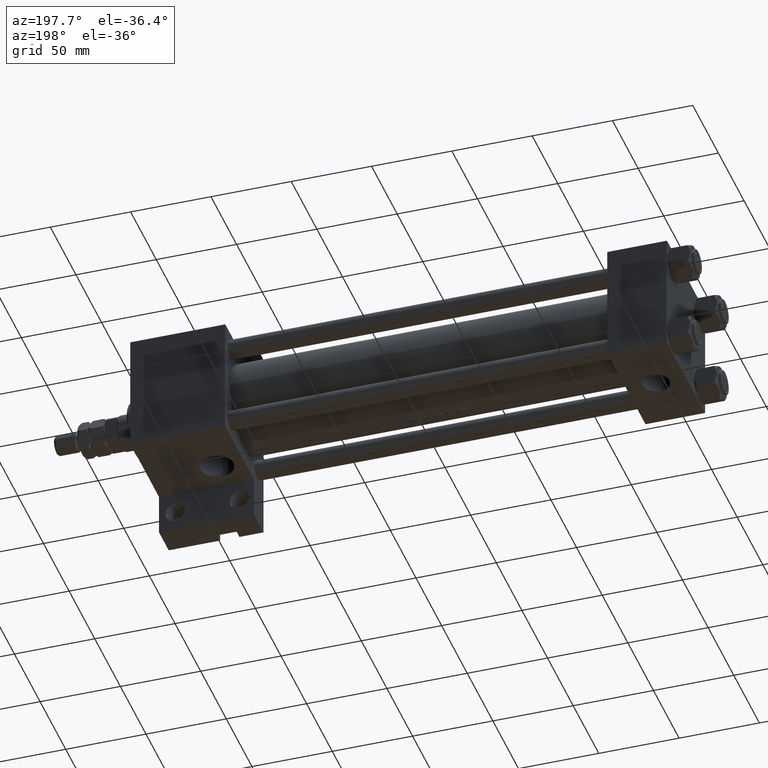
[diagram: clean part render]
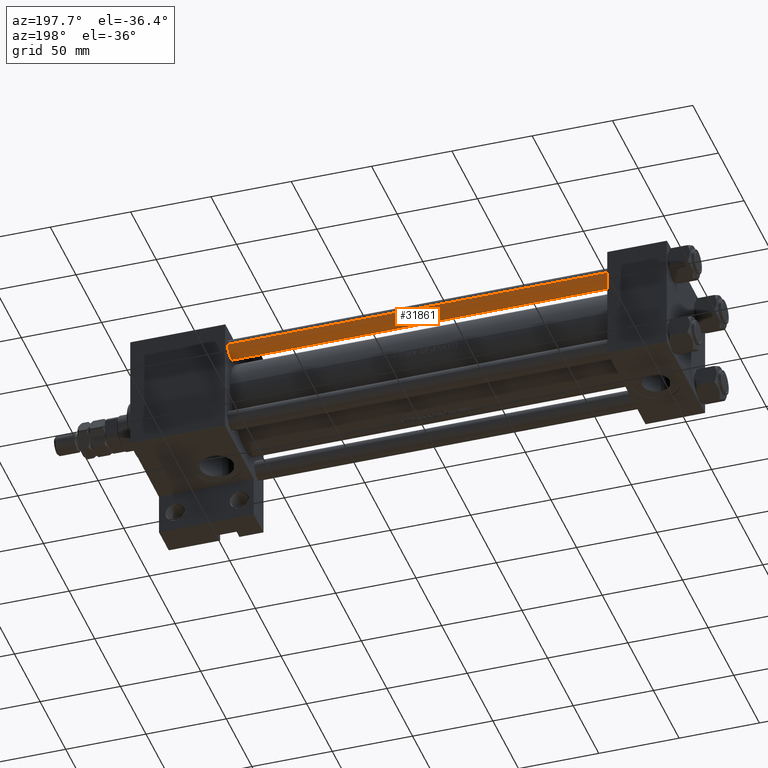
[diagram: same view with one face highlighted and labeled with its STEP entity id]
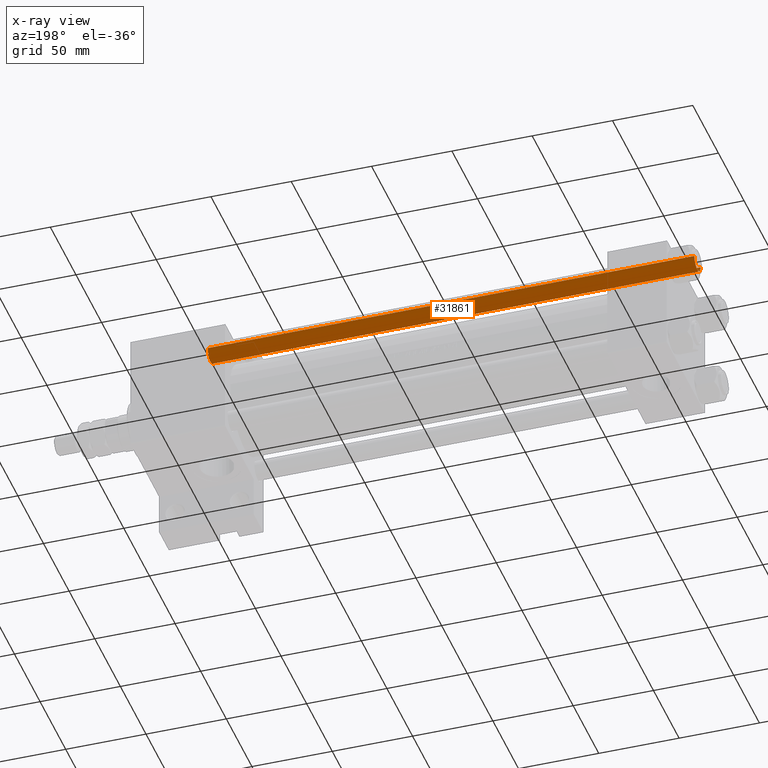
[diagram: x-ray of the same camera — body ghosted, the highlighted face saturated]
A machine part, auxiliary view. The second image highlights one B-rep face of the part: STEP entity #31861.
The next image is the same camera in x-ray: the body ghosted, the highlighted face saturated — about 0% of this face is hidden behind the body in this view.
In plain terms, the highlighted cylindrical surface (edge-blend (fillet) strip) has radius 6 mm, axis along (1, -0, 0).
Its self-contained STEP definition (entity closure, byte-faithful):
#1759 = CARTESIAN_POINT ( 'NONE',  ( 6.000000000000000888, 7.347880794884120722E-16, 0.4999999999999449329 ) ) ;
#1835 = VERTEX_POINT ( 'NONE', #23156 ) ;
#4898 = DIRECTION ( 'NONE',  ( 1.000000000000000000, 0.000000000000000000, 0.000000000000000000 ) ) ;
#5608 = CARTESIAN_POINT ( 'NONE',  ( -6.000000000000000888, 0.000000000000000000, 304.0000000000000000 ) ) ;
#8917 = CARTESIAN_POINT ( 'NONE',  ( 0.000000000000000000, 0.000000000000000000, 304.0000000000000000 ) ) ;
#12174 = CARTESIAN_POINT ( 'NONE',  ( 0.000000000000000000, 0.000000000000000000, 303.5000000000000000 ) ) ;
#13141 = DIRECTION ( 'NONE',  ( -1.000000000000000000, 0.000000000000000000, 0.000000000000000000 ) ) ;
#14355 = EDGE_CURVE ( 'NONE', #1835, #30058, #34041, .T. ) ;
#14529 = AXIS2_PLACEMENT_3D ( 'NONE', #23792, #38954, #4898 ) ;
#15609 = ORIENTED_EDGE ( 'NONE', *, *, #14355, .F. ) ;
#16097 = EDGE_CURVE ( 'NONE', #34842, #23646, #19296, .T. ) ;
#16414 = EDGE_LOOP ( 'NONE', ( #23116, #48964, #47480, #15609 ) ) ;
#16913 = CIRCLE ( 'NONE', #14529, 6.000000000000000888 ) ;
#19296 = LINE ( 'NONE', #37966, #28709 ) ;
#19553 = DIRECTION ( 'NONE',  ( -0.000000000000000000, -0.000000000000000000, -1.000000000000000000 ) ) ;
#23116 = ORIENTED_EDGE ( 'NONE', *, *, #26009, .T. ) ;
#23156 = CARTESIAN_POINT ( 'NONE',  ( -6.000000000000000888, 0.000000000000000000, 303.5000000000000000 ) ) ;
#23646 = VERTEX_POINT ( 'NONE', #1759 ) ;
#23792 = CARTESIAN_POINT ( 'NONE',  ( 0.000000000000000000, 0.000000000000000000, 0.4999999999999449329 ) ) ;
#26009 = EDGE_CURVE ( 'NONE', #1835, #34842, #34645, .T. ) ;
#27825 = CYLINDRICAL_SURFACE ( 'NONE', #33760, 6.000000000000000888 ) ;
#27980 = DIRECTION ( 'NONE',  ( -0.000000000000000000, -0.000000000000000000, -1.000000000000000000 ) ) ;
#28709 = VECTOR ( 'NONE', #19553, 1000.000000000000000 ) ;
#30058 = VERTEX_POINT ( 'NONE', #31485 ) ;
#31308 = DIRECTION ( 'NONE',  ( -0.000000000000000000, -0.000000000000000000, -1.000000000000000000 ) ) ;
#31331 = DIRECTION ( 'NONE',  ( 1.000000000000000000, 0.000000000000000000, 0.000000000000000000 ) ) ;
#31485 = CARTESIAN_POINT ( 'NONE',  ( -6.000000000000000888, 0.000000000000000000, 0.4999999999999449329 ) ) ;
#31861 = ADVANCED_FACE ( 'NONE', ( #36031 ), #27825, .T. ) ;
#33760 = AXIS2_PLACEMENT_3D ( 'NONE', #8917, #31308, #13141 ) ;
#34041 = LINE ( 'NONE', #5608, #34837 ) ;
#34107 = CARTESIAN_POINT ( 'NONE',  ( 6.000000000000000888, 7.347880794884120722E-16, 303.5000000000000000 ) ) ;
#34645 = CIRCLE ( 'NONE', #43493, 6.000000000000000888 ) ;
#34837 = VECTOR ( 'NONE', #27980, 1000.000000000000000 ) ;
#34842 = VERTEX_POINT ( 'NONE', #34107 ) ;
#36031 = FACE_OUTER_BOUND ( 'NONE', #16414, .T. ) ;
#37966 = CARTESIAN_POINT ( 'NONE',  ( 6.000000000000000888, 7.347880794884120722E-16, 304.0000000000000000 ) ) ;
#38954 = DIRECTION ( 'NONE',  ( -0.000000000000000000, -0.000000000000000000, 1.000000000000000000 ) ) ;
#41494 = EDGE_CURVE ( 'NONE', #23646, #30058, #16913, .T. ) ;
#43493 = AXIS2_PLACEMENT_3D ( 'NONE', #12174, #45789, #31331 ) ;
#45789 = DIRECTION ( 'NONE',  ( 0.000000000000000000, 0.000000000000000000, -1.000000000000000000 ) ) ;
#47480 = ORIENTED_EDGE ( 'NONE', *, *, #41494, .T. ) ;
#48964 = ORIENTED_EDGE ( 'NONE', *, *, #16097, .T. ) ;